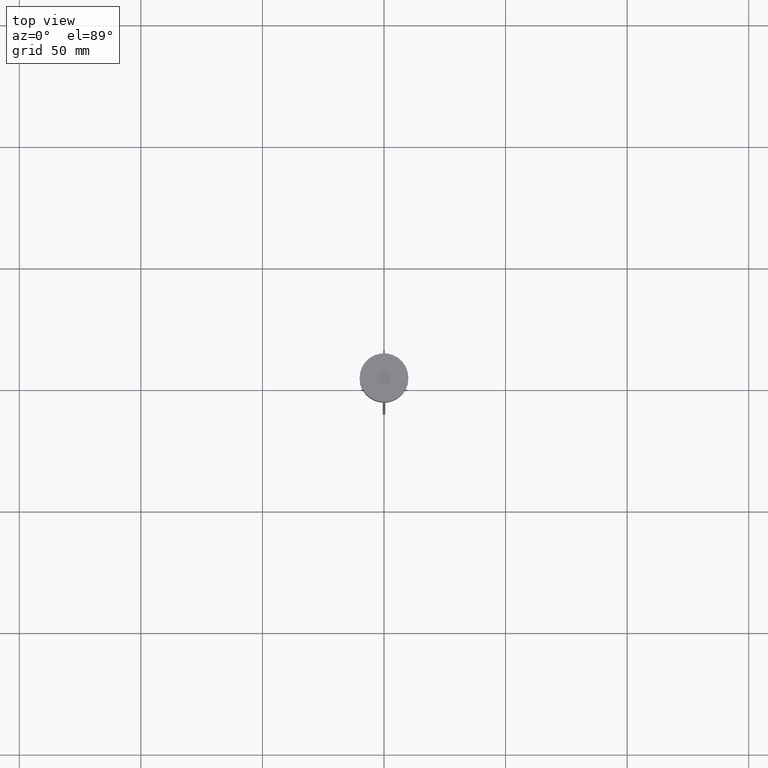
[diagram: clean part render]
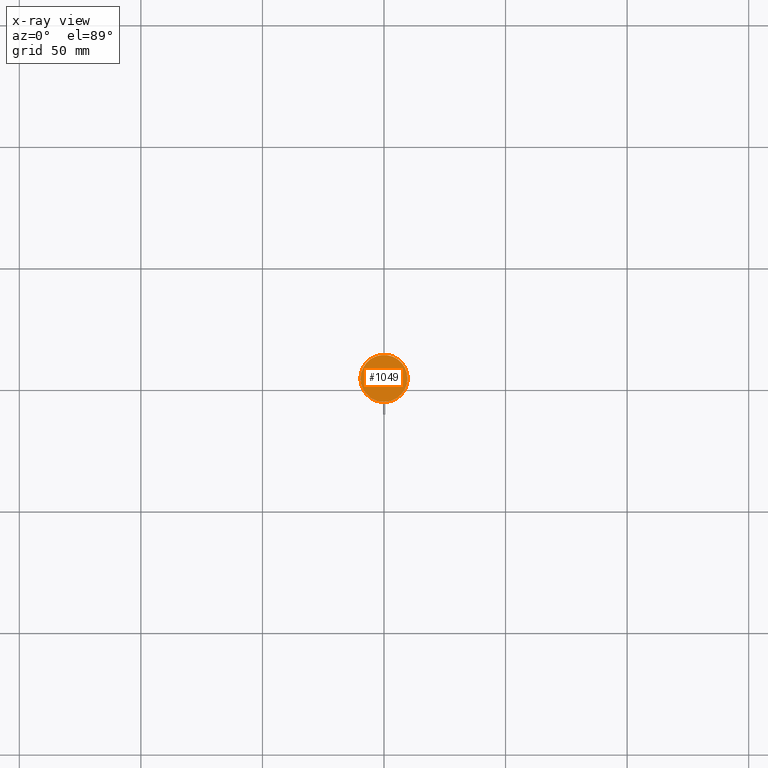
[diagram: x-ray — body ghosted, one internal face saturated and labeled with its STEP entity id]
A machine part, top view, then the same camera in x-ray: the body is ghosted and one INTERNAL B-rep face — a face not visible from any outside direction — is saturated and labeled: STEP entity #1049.
In plain terms, the highlighted planar face has unit normal (0, 0, -1).
Its self-contained STEP definition (entity closure, byte-faithful):
#225 = DIRECTION ( 'NONE',  ( -0.000000000000000000, -0.000000000000000000, 1.000000000000000000 ) ) ;
#267 = CIRCLE ( 'NONE', #1548, 9.700000000000002842 ) ;
#304 = EDGE_LOOP ( 'NONE', ( #1895, #347 ) ) ;
#340 = AXIS2_PLACEMENT_3D ( 'NONE', #1669, #225, #772 ) ;
#347 = ORIENTED_EDGE ( 'NONE', *, *, #1876, .T. ) ;
#405 = VERTEX_POINT ( 'NONE', #833 ) ;
#772 = DIRECTION ( 'NONE',  ( -1.000000000000000000, 0.000000000000000000, 0.000000000000000000 ) ) ;
#833 = CARTESIAN_POINT ( 'NONE',  ( 9.700000000000002842, 1.206277097160143024E-15, -20.49999999999999645 ) ) ;
#848 = CARTESIAN_POINT ( 'NONE',  ( -9.700000000000002842, 0.000000000000000000, -20.49999999999999645 ) ) ;
#907 = CIRCLE ( 'NONE', #340, 9.700000000000002842 ) ;
#1049 = ADVANCED_FACE ( 'NONE', ( #1743 ), #1564, .F. ) ;
#1151 = CARTESIAN_POINT ( 'NONE',  ( 0.000000000000000000, 0.000000000000000000, -20.49999999999999645 ) ) ;
#1213 = VERTEX_POINT ( 'NONE', #848 ) ;
#1410 = DIRECTION ( 'NONE',  ( 0.000000000000000000, 0.000000000000000000, -1.000000000000000000 ) ) ;
#1441 = CARTESIAN_POINT ( 'NONE',  ( 0.000000000000000000, 0.000000000000000000, -20.49999999999999645 ) ) ;
#1548 = AXIS2_PLACEMENT_3D ( 'NONE', #1151, #1966, #1765 ) ;
#1564 = PLANE ( 'NONE',  #1613 ) ;
#1597 = DIRECTION ( 'NONE',  ( -1.000000000000000000, 0.000000000000000000, -0.000000000000000000 ) ) ;
#1613 = AXIS2_PLACEMENT_3D ( 'NONE', #1441, #1410, #1597 ) ;
#1669 = CARTESIAN_POINT ( 'NONE',  ( 0.000000000000000000, 0.000000000000000000, -20.49999999999999645 ) ) ;
#1713 = EDGE_CURVE ( 'NONE', #1213, #405, #267, .T. ) ;
#1743 = FACE_OUTER_BOUND ( 'NONE', #304, .T. ) ;
#1765 = DIRECTION ( 'NONE',  ( -1.000000000000000000, 0.000000000000000000, 0.000000000000000000 ) ) ;
#1876 = EDGE_CURVE ( 'NONE', #405, #1213, #907, .T. ) ;
#1895 = ORIENTED_EDGE ( 'NONE', *, *, #1713, .T. ) ;
#1966 = DIRECTION ( 'NONE',  ( -0.000000000000000000, -0.000000000000000000, 1.000000000000000000 ) ) ;